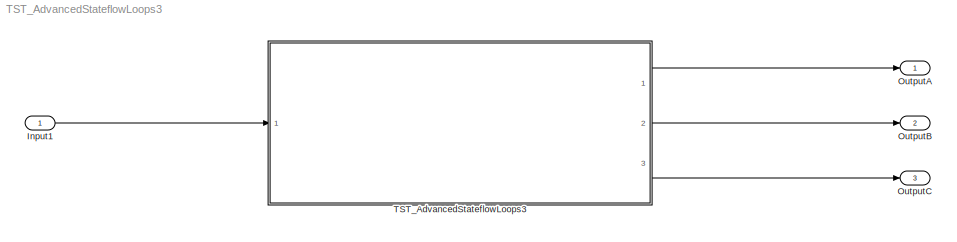
MODEL TST_AdvancedStateflowLoops3
KIND model
BLOCK [Inport] Input1
  BusOutputAsStruct = on
  IconDisplay = Port number
  OutDataTypeStr = uint32
  SID = 23
BLOCK [Outport] OutputA
  IconDisplay = Port number
  OutDataTypeStr = double
  PortDimensions = 1
  SID = 25
BLOCK [Outport] OutputB
  IconDisplay = Port number
  OutDataTypeStr = double
  Port = 2
  PortDimensions = 1
  SID = 32
BLOCK [Outport] OutputC
  IconDisplay = Port number
  OutDataTypeStr = double
  Port = 3
  PortDimensions = 1
  SID = 37
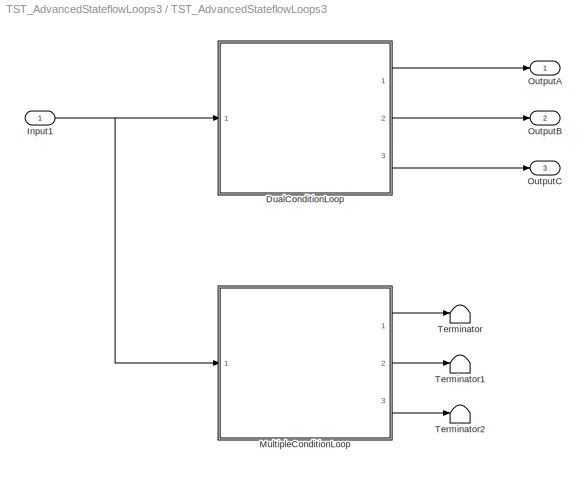
BLOCK [SubSystem] TST_AdvancedStateflowLoops3
  Ports = [1, 3]
  RequestExecContextInheritance = off
  SID = 2
  TreatAsAtomicUnit = on
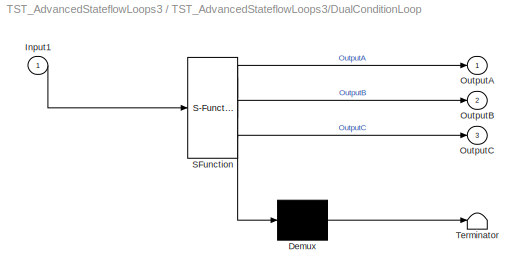
BLOCK [SubSystem] TST_AdvancedStateflowLoops3/DualConditionLoop
  ErrorFcn = Stateflow.Translate.translate
  PermitHierarchicalResolution = ExplicitOnly
  Ports = [1, 3]
  RequestExecContextInheritance = off
  SFBlockType = Chart
  SID = 56
  TreatAsAtomicUnit = on
BLOCK [Demux] TST_AdvancedStateflowLoops3/DualConditionLoop/ Demux 
  Outputs = 1
  Ports = [1, 1]
  SID = 56::14
BLOCK [S-Function] TST_AdvancedStateflowLoops3/DualConditionLoop/ SFunction 
  EnableBusSupport = off
  FunctionName = sf_sfun
  PortCounts = [1 4]
  Ports = [1, 4]
  SFcnIsStateOwnerBlock = off
  SFunctionDeploymentMode = off
  SID = 56::13
  Tag = Stateflow S-Function 3
BLOCK [Terminator] TST_AdvancedStateflowLoops3/DualConditionLoop/ Terminator 
  SID = 56::15
BLOCK [Inport] TST_AdvancedStateflowLoops3/DualConditionLoop/Input1
  IconDisplay = Port number
  SID = 56::9
BLOCK [Outport] TST_AdvancedStateflowLoops3/DualConditionLoop/OutputA
  IconDisplay = Port number
  SID = 56::10
BLOCK [Outport] TST_AdvancedStateflowLoops3/DualConditionLoop/OutputB
  IconDisplay = Port number
  Port = 2
  SID = 56::11
BLOCK [Outport] TST_AdvancedStateflowLoops3/DualConditionLoop/OutputC
  IconDisplay = Port number
  Port = 3
  SID = 56::12
BLOCK [Inport] TST_AdvancedStateflowLoops3/Input1
  BusOutputAsStruct = on
  IconDisplay = Port number
  OutDataTypeStr = uint32
  SID = 39
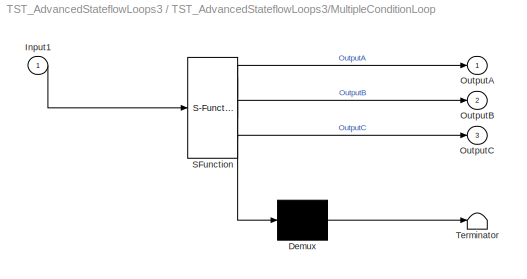
BLOCK [SubSystem] TST_AdvancedStateflowLoops3/MultipleConditionLoop
  ErrorFcn = Stateflow.Translate.translate
  PermitHierarchicalResolution = ExplicitOnly
  Ports = [1, 3]
  RequestExecContextInheritance = off
  SFBlockType = Chart
  SID = 57
  TreatAsAtomicUnit = on
BLOCK [Demux] TST_AdvancedStateflowLoops3/MultipleConditionLoop/ Demux 
  Outputs = 1
  Ports = [1, 1]
  SID = 57::14
BLOCK [S-Function] TST_AdvancedStateflowLoops3/MultipleConditionLoop/ SFunction 
  EnableBusSupport = off
  FunctionName = sf_sfun
  PortCounts = [1 4]
  Ports = [1, 4]
  SFcnIsStateOwnerBlock = off
  SFunctionDeploymentMode = off
  SID = 57::13
  Tag = Stateflow S-Function 1
BLOCK [Terminator] TST_AdvancedStateflowLoops3/MultipleConditionLoop/ Terminator 
  SID = 57::15
BLOCK [Inport] TST_AdvancedStateflowLoops3/MultipleConditionLoop/Input1
  IconDisplay = Port number
  SID = 57::9
BLOCK [Outport] TST_AdvancedStateflowLoops3/MultipleConditionLoop/OutputA
  IconDisplay = Port number
  SID = 57::10
BLOCK [Outport] TST_AdvancedStateflowLoops3/MultipleConditionLoop/OutputB
  IconDisplay = Port number
  Port = 2
  SID = 57::11
BLOCK [Outport] TST_AdvancedStateflowLoops3/MultipleConditionLoop/OutputC
  IconDisplay = Port number
  Port = 3
  SID = 57::12
BLOCK [Outport] TST_AdvancedStateflowLoops3/OutputA
  IconDisplay = Port number
  OutDataTypeStr = double
  PortDimensions = 1
  SID = 40
BLOCK [Outport] TST_AdvancedStateflowLoops3/OutputB
  IconDisplay = Port number
  OutDataTypeStr = double
  Port = 2
  PortDimensions = 1
  SID = 41
BLOCK [Outport] TST_AdvancedStateflowLoops3/OutputC
  IconDisplay = Port number
  OutDataTypeStr = double
  Port = 3
  PortDimensions = 1
  SID = 42
BLOCK [Terminator] TST_AdvancedStateflowLoops3/Terminator
  SID = 58
BLOCK [Terminator] TST_AdvancedStateflowLoops3/Terminator1
  SID = 59
BLOCK [Terminator] TST_AdvancedStateflowLoops3/Terminator2
  SID = 60
LINE Input1:1 -> TST_AdvancedStateflowLoops3:1
LINE TST_AdvancedStateflowLoops3/DualConditionLoop/ Demux :1 -> TST_AdvancedStateflowLoops3/DualConditionLoop/ Terminator :1
LINE TST_AdvancedStateflowLoops3/DualConditionLoop/ SFunction :1 -> TST_AdvancedStateflowLoops3/DualConditionLoop/ Demux :1
LINE TST_AdvancedStateflowLoops3/DualConditionLoop/ SFunction :2 -> TST_AdvancedStateflowLoops3/DualConditionLoop/OutputA:1
LINE TST_AdvancedStateflowLoops3/DualConditionLoop/ SFunction :3 -> TST_AdvancedStateflowLoops3/DualConditionLoop/OutputB:1
LINE TST_AdvancedStateflowLoops3/DualConditionLoop/ SFunction :4 -> TST_AdvancedStateflowLoops3/DualConditionLoop/OutputC:1
LINE TST_AdvancedStateflowLoops3/DualConditionLoop/Input1:1 -> TST_AdvancedStateflowLoops3/DualConditionLoop/ SFunction :1
LINE TST_AdvancedStateflowLoops3/DualConditionLoop:1 -> TST_AdvancedStateflowLoops3/OutputA:1
LINE TST_AdvancedStateflowLoops3/DualConditionLoop:2 -> TST_AdvancedStateflowLoops3/OutputB:1
LINE TST_AdvancedStateflowLoops3/DualConditionLoop:3 -> TST_AdvancedStateflowLoops3/OutputC:1
NET TST_AdvancedStateflowLoops3/Input1:1 -> TST_AdvancedStateflowLoops3/DualConditionLoop:1, TST_AdvancedStateflowLoops3/MultipleConditionLoop:1
LINE TST_AdvancedStateflowLoops3/MultipleConditionLoop/ Demux :1 -> TST_AdvancedStateflowLoops3/MultipleConditionLoop/ Terminator :1
LINE TST_AdvancedStateflowLoops3/MultipleConditionLoop/ SFunction :1 -> TST_AdvancedStateflowLoops3/MultipleConditionLoop/ Demux :1
LINE TST_AdvancedStateflowLoops3/MultipleConditionLoop/ SFunction :2 -> TST_AdvancedStateflowLoops3/MultipleConditionLoop/OutputA:1
LINE TST_AdvancedStateflowLoops3/MultipleConditionLoop/ SFunction :3 -> TST_AdvancedStateflowLoops3/MultipleConditionLoop/OutputB:1
LINE TST_AdvancedStateflowLoops3/MultipleConditionLoop/ SFunction :4 -> TST_AdvancedStateflowLoops3/MultipleConditionLoop/OutputC:1
LINE TST_AdvancedStateflowLoops3/MultipleConditionLoop/Input1:1 -> TST_AdvancedStateflowLoops3/MultipleConditionLoop/ SFunction :1
LINE TST_AdvancedStateflowLoops3/MultipleConditionLoop:1 -> TST_AdvancedStateflowLoops3/Terminator:1
LINE TST_AdvancedStateflowLoops3/MultipleConditionLoop:2 -> TST_AdvancedStateflowLoops3/Terminator1:1
LINE TST_AdvancedStateflowLoops3/MultipleConditionLoop:3 -> TST_AdvancedStateflowLoops3/Terminator2:1
LINE TST_AdvancedStateflowLoops3:1 -> OutputA:1
LINE TST_AdvancedStateflowLoops3:2 -> OutputB:1
LINE TST_AdvancedStateflowLoops3:3 -> OutputC:1
note: NET lines group one-source signal fan-out (src -> all destinations, sorted); 1:1 wires keep LINE
CHART TST_AdvancedStateflowLoops3/MultipleConditionLoop states=1 transitions=5
  STATE_LABEL 'This flowgraph demonstrates three single-transition loops.\\nSemantically they all are part of the same repeat statement.'
CHART TST_AdvancedStateflowLoops3/DualConditionLoop states=2 transitions=6
  STATE_LABEL 'StateX'
  STATE_LABEL 'This flowgraph demonstrates two indiviual loops that are semantically joined.\\nBecause they have the same loop source/destination junction, they are\\npart of the same repeat statement.'
